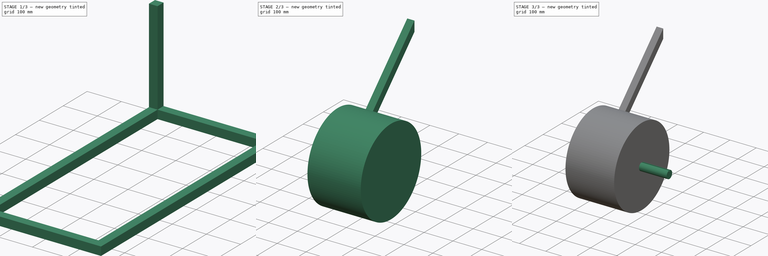
[diagram: build sequence overview — one tinted view per stage of 3, left to right]
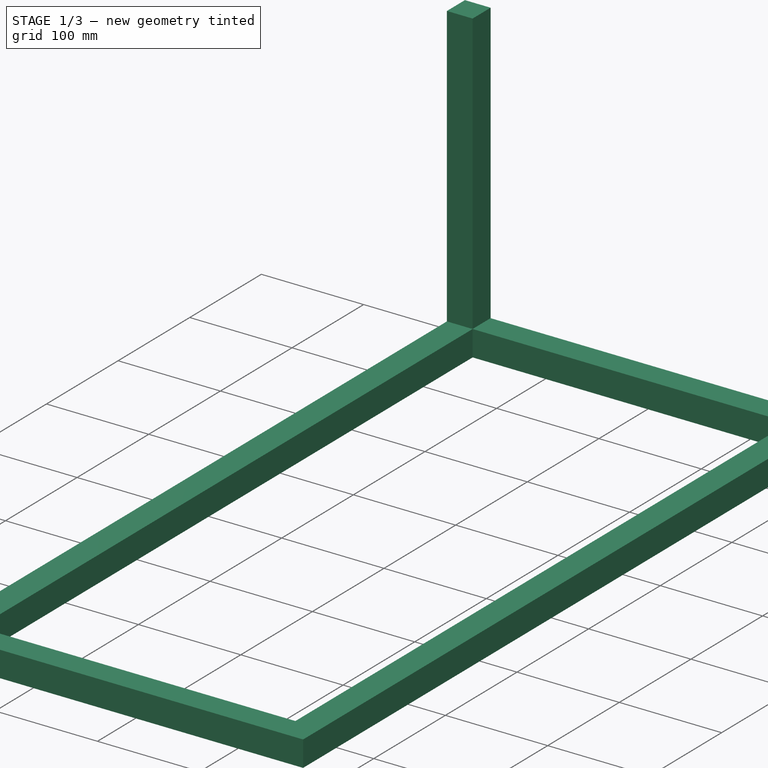
[diagram: stage 1 of 3 — iso view after this stage's code; geometry added in this stage tinted green]
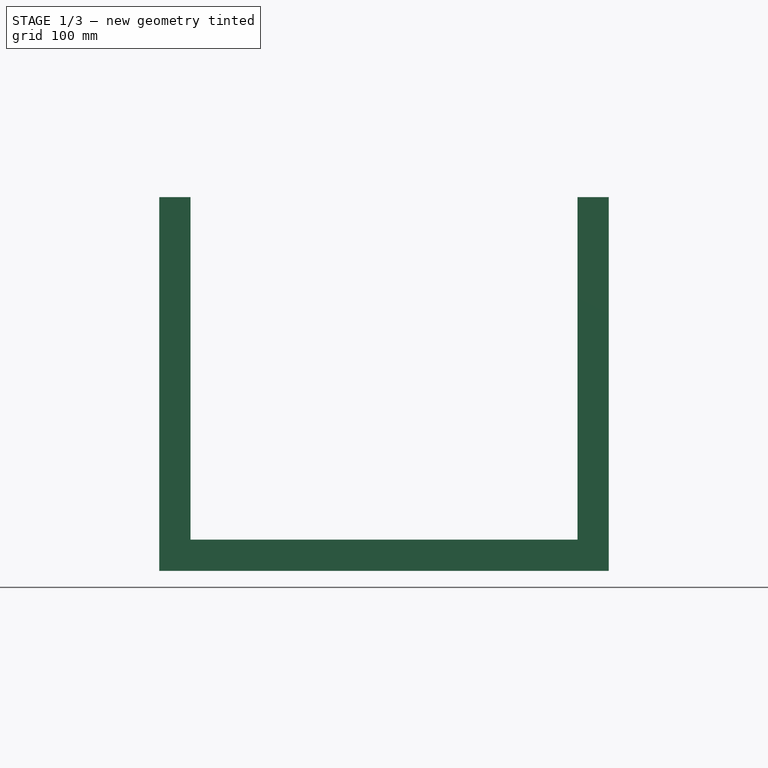
[diagram: stage 1 of 3 — front view after this stage's code; geometry added in this stage tinted green]
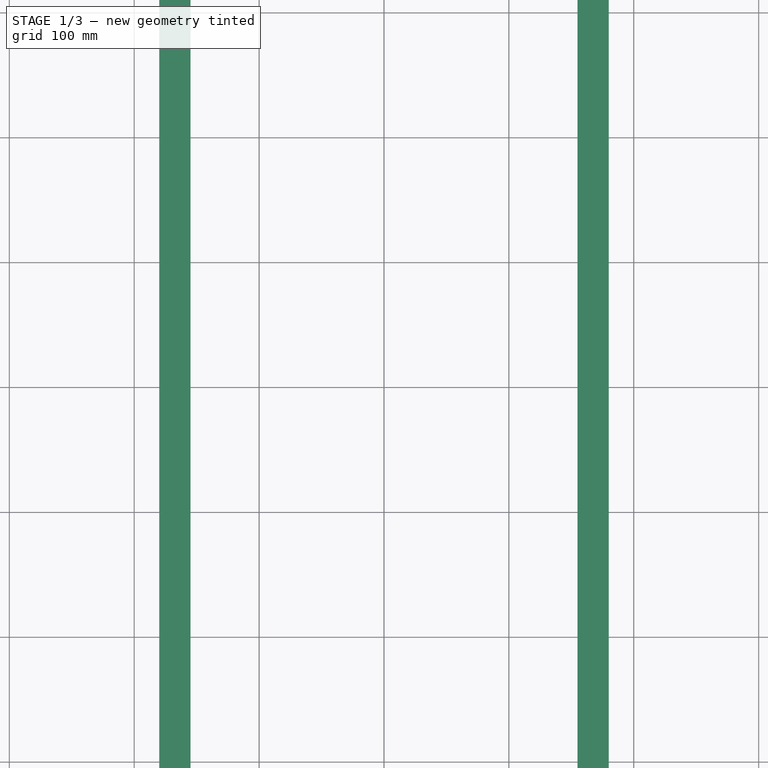
[diagram: stage 1 of 3 — top view after this stage's code; geometry added in this stage tinted green]
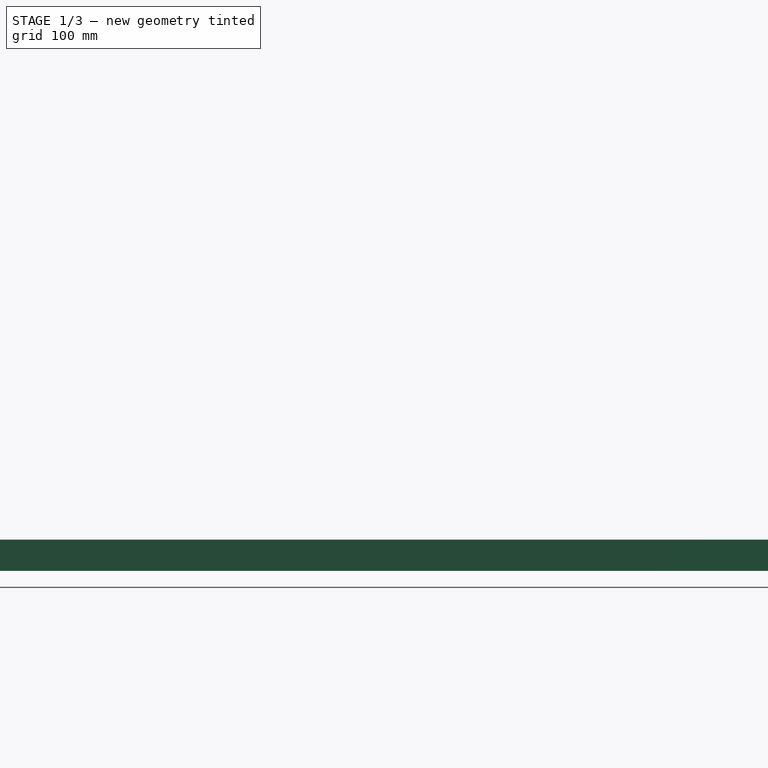
[diagram: stage 1 of 3 — right view after this stage's code; geometry added in this stage tinted green]
FCSTD DOCUMENT  (FreeCAD 0.19R20943 (Git))
Label: Frame
License: All rights reserved
LicenseURL: http://en.wikipedia.org/wiki/All_rights_reserved
objects: Sketcher::SketchObject×7, PartDesign::Pad×7, PartDesign::Body×4
note: 25 computed .brp shape members not serialized (recipe doc carries the construction recipe); baked Part::Feature solids carry a one-line shape summary decoded from their .brp

FEATURE [Sketcher::SketchObject] Sketch  label="chassis"
  MapMode = 5
  Support = -> [XY_Plane]
  sketch-geometry (8):
    g0: LineSegment StartX=-180 StartY=370 StartZ=0 EndX=180 EndY=370 EndZ=0
    g1: LineSegment StartX=180 StartY=370 StartZ=0 EndX=180 EndY=-370 EndZ=0
    g2: LineSegment StartX=180 StartY=-370 StartZ=0 EndX=-180 EndY=-370 EndZ=0
    g3: LineSegment StartX=-180 StartY=-370 StartZ=0 EndX=-180 EndY=370 EndZ=0
    g4: LineSegment StartX=-154.9 StartY=344.9 StartZ=0 EndX=154.9 EndY=344.9 EndZ=0
    g5: LineSegment StartX=154.9 StartY=344.9 StartZ=0 EndX=154.9 EndY=-344.9 EndZ=0
    g6: LineSegment StartX=154.9 StartY=-344.9 StartZ=0 EndX=-154.9 EndY=-344.9 EndZ=0
    g7: LineSegment StartX=-154.9 StartY=-344.9 StartZ=0 EndX=-154.9 EndY=344.9 EndZ=0
  constraints (20):
    c: Coincident(g0,g1)
    c: Coincident(g1,g2)
    c: Coincident(g2,g3)
    c: Coincident(g3,g0)
    c: Horizontal(g2)
    c: Vertical(g1)
    c: Symmetric(g0,g0,g-2)
    c: Symmetric(g0,g2,g-1)
    c: DistanceX(g0,g0) = 360
    c: DistanceY(g3,g3) = 740
    c: Coincident(g4,g5)
    c: Coincident(g5,g6)
    c: Coincident(g6,g7)
    c: Coincident(g7,g4)
    c: Horizontal(g6)
    c: Vertical(g5)
    c: DistanceY(g4,g0) = 25.1
    c: Symmetric(g4,g4,g-2)
    c: Symmetric(g4,g6,g-1)
    c: DistanceX(g4,g0) = 25.1
FEATURE [PartDesign::Pad] Pad  label="Chassis"
  Length = 25.1
  Length2 = 100
  Profile = -> Sketch
  Type = 0
FEATURE [PartDesign::Body] Body  label="Frame"
  Group = -> [Sketch,Pad]
  Origin = -> Origin
  Tip = -> Pad
FEATURE [Sketcher::SketchObject] Sketch001
  ExternalGeometry = -> [Pad]
  MapMode = 5
  Placement = pos=(0,0,25.1) rot=(0,0,1;0rad)
  Support = -> [Pad]
  sketch-geometry (8):
    g0: LineSegment StartX=-180 StartY=370 StartZ=0 EndX=-154.9 EndY=370 EndZ=0
    g1: LineSegment StartX=-154.9 StartY=370 StartZ=0 EndX=-154.9 EndY=344.9 EndZ=0
    g2: LineSegment StartX=-154.9 StartY=344.9 StartZ=0 EndX=-180 EndY=344.9 EndZ=0
    g3: LineSegment StartX=-180 StartY=344.9 StartZ=0 EndX=-180 EndY=370 EndZ=0
    g4: LineSegment StartX=154.9 StartY=344.9 StartZ=0 EndX=180 EndY=344.9 EndZ=0
    g5: LineSegment StartX=180 StartY=344.9 StartZ=0 EndX=180 EndY=370 EndZ=0
    g6: LineSegment StartX=180 StartY=370 StartZ=0 EndX=154.9 EndY=370 EndZ=0
    g7: LineSegment StartX=154.9 StartY=370 StartZ=0 EndX=154.9 EndY=344.9 EndZ=0
  constraints (20):
    c: Coincident(g0,g1)
    c: Coincident(g1,g2)
    c: Coincident(g2,g3)
    c: Coincident(g3,g0)
    c: Horizontal(g0)
    c: Horizontal(g2)
    c: Vertical(g1)
    c: Vertical(g3)
    c: Coincident(g0,g-3)
    c: Coincident(g1,g-4)
    c: Coincident(g4,g5)
    c: Coincident(g5,g6)
    c: Coincident(g6,g7)
    c: Coincident(g7,g4)
    c: Horizontal(g4)
    c: Horizontal(g6)
    c: Vertical(g5)
    c: Vertical(g7)
    c: Coincident(g4,g-6)
    c: Coincident(g5,g-5)
FEATURE [PartDesign::Pad] Pad001
  BaseFeature = -> Pad
  Length = 274.25
  Length2 = 100
  Profile = -> Sketch001
  Type = 0
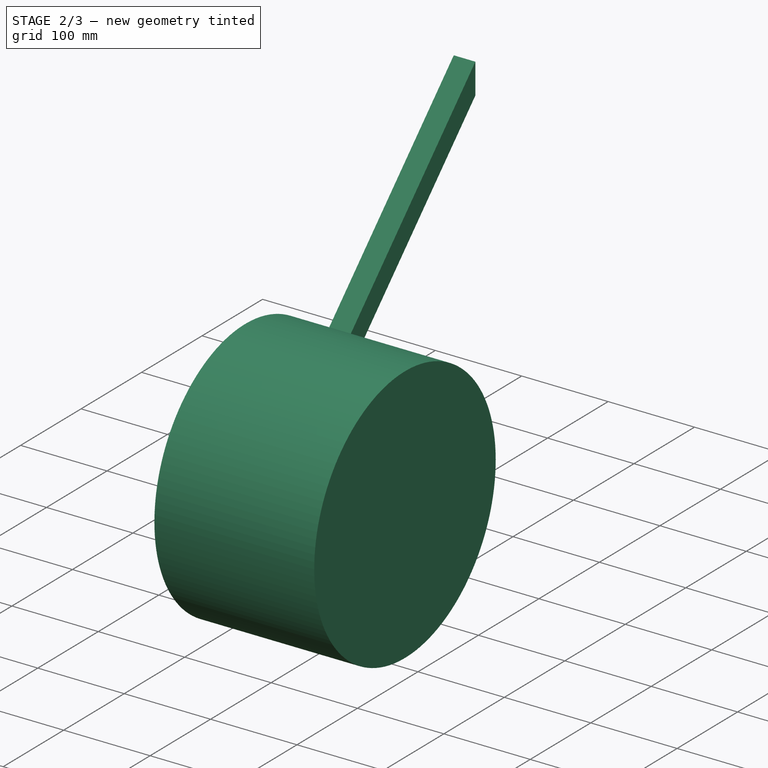
[diagram: stage 2 of 3 — iso view after this stage's code; geometry added in this stage tinted green]
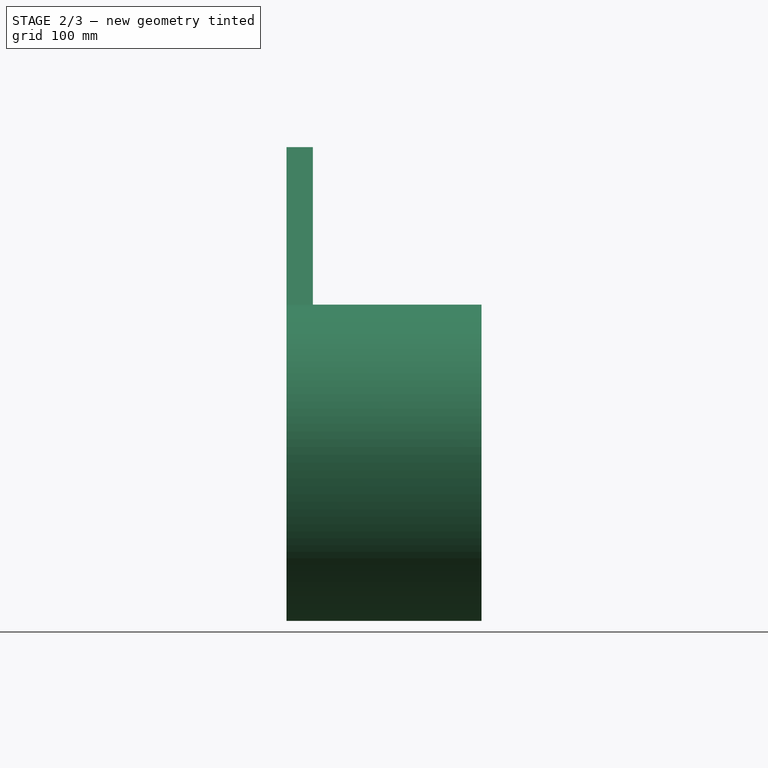
[diagram: stage 2 of 3 — front view after this stage's code; geometry added in this stage tinted green]
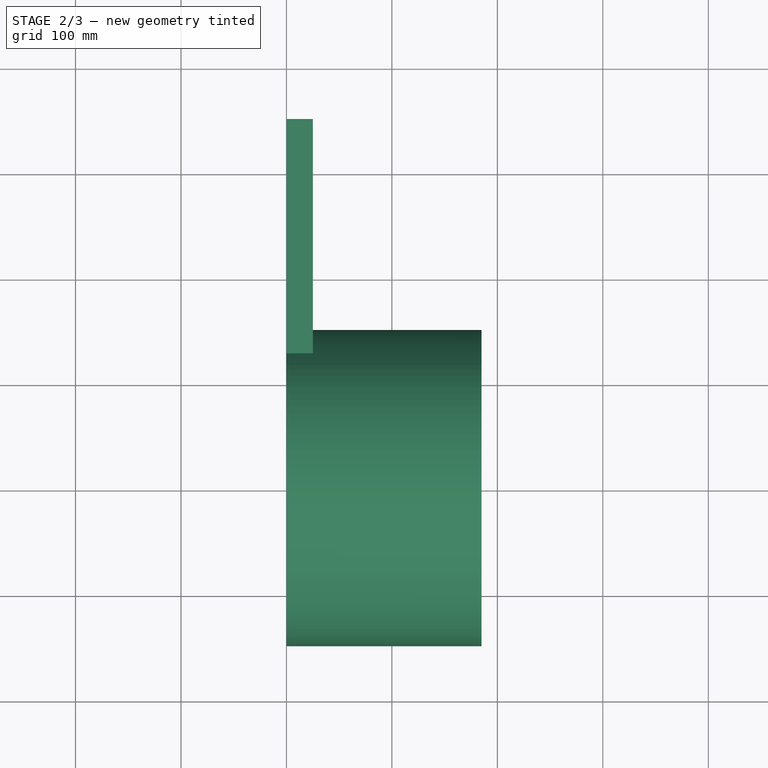
[diagram: stage 2 of 3 — top view after this stage's code; geometry added in this stage tinted green]
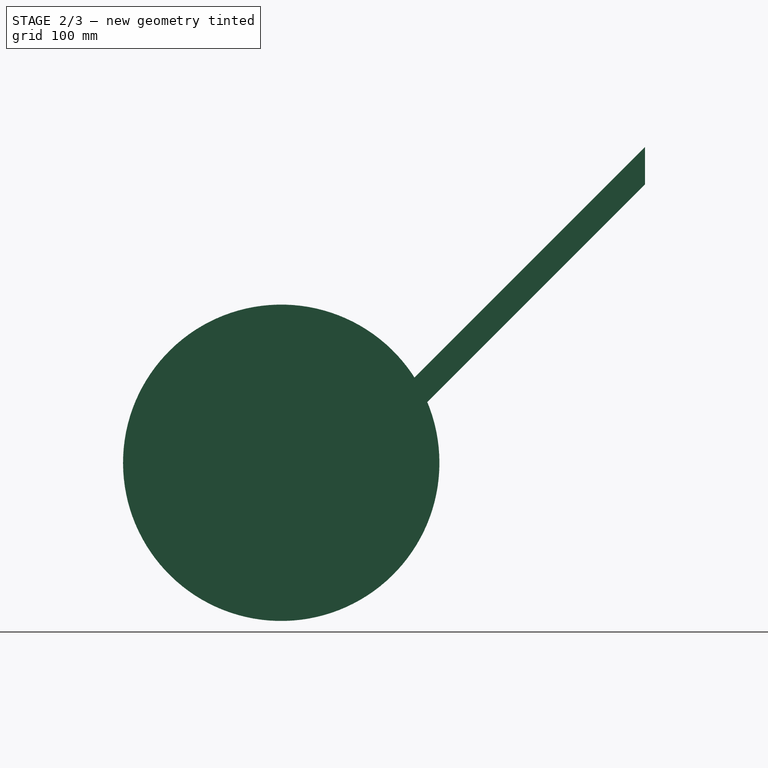
[diagram: stage 2 of 3 — right view after this stage's code; geometry added in this stage tinted green]
FEATURE [Sketcher::SketchObject] Sketch002  label="spool"
  MapMode = 5
  Placement = pos=(0,0,0) rot=(0.57735,0.57735,0.57735;2.0944rad)
  Support = -> [YZ_Plane001]
  sketch-geometry (1):
    g0: Circle CenterX=0 CenterY=0 CenterZ=0 NormalX=0 NormalY=0 NormalZ=1 AngleXU=0 Radius=150
  constraints (2):
    c: Coincident(g0,g-1)
    c: Diameter(g0) = 300
FEATURE [PartDesign::Pad] Pad002  label="Spool"
  Length = 185
  Length2 = 100
  Placement = pos=(0,0,0) rot=(0.57735,0.57735,0.57735;2.0944rad)
  Profile = -> Sketch002
  Type = 0
FEATURE [PartDesign::Body] Body001  label="Bobine"
  Group = -> [Sketch002,Pad002,Sketch003,Pad003,Sketch004,Pad004]
  Origin = -> Origin001
  Placement = pos=(-110,174,189) rot=(0,0,1;0rad)
  Tip = -> Pad004
FEATURE [Sketcher::SketchObject] Sketch005
  MapMode = 5
  Placement = pos=(0,0,0) rot=(0.57735,0.57735,0.57735;2.0944rad)
  Support = -> [YZ_Plane002]
  sketch-geometry (10):
    g0: Circle CenterX=0 CenterY=42.9 CenterZ=0 NormalX=0 NormalY=0 NormalZ=1 AngleXU=0 Radius=15
    g1: LineSegment StartX=-82.5 StartY=0 StartZ=0 EndX=82.5 EndY=0 EndZ=0
    g2: LineSegment StartX=82.5 StartY=0 StartZ=0 EndX=82.5 EndY=17 EndZ=0
    g3: LineSegment StartX=82.5 StartY=17 StartZ=0 EndX=41.1 EndY=17 EndZ=0
    g4: LineSegment StartX=-82.5 StartY=0 StartZ=0 EndX=-82.5 EndY=17 EndZ=0
    g5: LineSegment StartX=-82.5 StartY=17 StartZ=0 EndX=-41.1 EndY=17 EndZ=0
    g6: ArcOfCircle CenterX=0 CenterY=42.9 CenterZ=0 NormalX=0 NormalY=0 NormalZ=1 AngleXU=0 Radius=41.1 StartAngle=0 EndAngle=3.14159
    g7: LineSegment StartX=-41.1 StartY=42.9 StartZ=0 EndX=-41.1 EndY=17 EndZ=0
    g8: LineSegment StartX=41.1 StartY=42.9 StartZ=0 EndX=41.1 EndY=17 EndZ=0
    g9: GeomPoint X=0 Y=84 Z=0
  constraints (27):
    c: Diameter(g0) = 30
    c: Vertical(g0,g-1)
    c: DistanceY(g-1,g0) = 42.9
    c: PointOnObject(g1,g-1)
    c: Symmetric(g1,g1,g-2)
    c: DistanceX(g1,g1) = 165
    c: Coincident(g2,g1)
    c: Vertical(g2)
    c: Coincident(g3,g2)
    c: Horizontal(g3)
    c: DistanceY(g2,g2) = 17
    c: Coincident(g4,g1)
    c: Coincident(g5,g4)
    c: Horizontal(g5)
    c: Symmetric(g4,g2,g-2)
    c: Coincident(g6,g0)
    c: Horizontal(g6,g0)
    c: Horizontal(g0,g6)
    c: Coincident(g7,g6)
    c: Coincident(g7,g5)
    c: Coincident(g8,g6)
    c: Coincident(g8,g3)
    c: Vertical(g7)
    c: Vertical(g8)
    c: PointOnObject(g9,g6)
    c: Vertical(g9,g0)
    c: DistanceY(g1,g9) = 84
FEATURE [PartDesign::Pad] Pad005
  Length = 48
  Length2 = 100
  Placement = pos=(0,0,0) rot=(0.57735,0.57735,0.57735;2.0944rad)
  Profile = -> Sketch005
  Type = 0
FEATURE [PartDesign::Body] Body002  label="UPC-206-20"
  Group = -> [Sketch005,Pad005]
  Origin = -> Origin002
  Placement = pos=(132,204.3,158.75) rot=(1,0,0;0.785398rad)
  Tip = -> Pad005
FEATURE [Sketcher::SketchObject] Sketch007
  ExternalGeometry = -> [Pad001]
  MapMode = 5
  Placement = pos=(0,0,0) rot=(0.57735,0.57735,0.57735;2.0944rad)
  Support = -> [YZ_Plane003]
  sketch-geometry (4):
    g0: LineSegment StartX=344.9 StartY=299.35 StartZ=0 EndX=70.65 EndY=25.1 EndZ=0
    g1: LineSegment StartX=70.65 StartY=25.1 StartZ=0 EndX=106.005 EndY=25.1 EndZ=0
    g2: LineSegment StartX=106.005 StartY=25.1 StartZ=0 EndX=344.9 EndY=263.995 EndZ=0
    g3: LineSegment StartX=344.9 StartY=263.995 StartZ=0 EndX=344.9 EndY=299.35 EndZ=0
  constraints (11):
    c: Coincident(g0,g-4)
    c: Angle(g0,g-4) = 0.785398
    c: PointOnObject(g0,g-5)
    c: Coincident(g1,g0)
    c: Coincident(g2,g1)
    c: Coincident(g3,g2)
    c: Coincident(g3,g0)
    c: Horizontal(g1)
    c: Vertical(g3)
    c: Parallel(g0,g2)
    c: DistanceX(g1,g1) = 35.3553
FEATURE [PartDesign::Pad] Pad006
  Length = 25
  Length2 = 100
  Placement = pos=(0,0,0) rot=(0.57735,0.57735,0.57735;2.0944rad)
  Profile = -> Sketch007
  Type = 0
FEATURE [PartDesign::Body] Body003  label="Support-Bobine"
  Group = -> [Sketch007,Pad006]
  Origin = -> Origin003
  Placement = pos=(155,0,0) rot=(0,0,1;0rad)
  Tip = -> Pad006
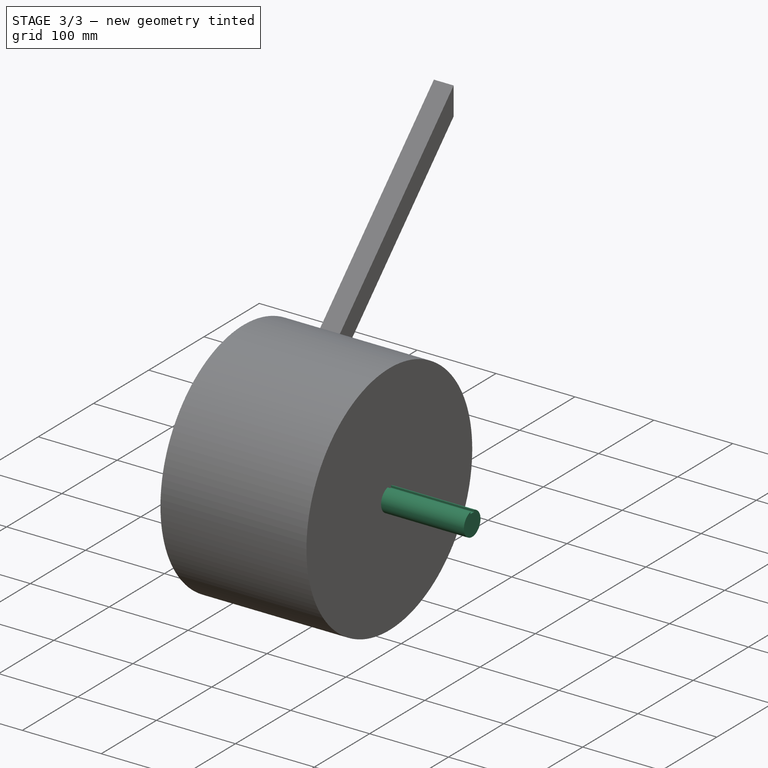
[diagram: stage 3 of 3 — iso view after this stage's code; geometry added in this stage tinted green]
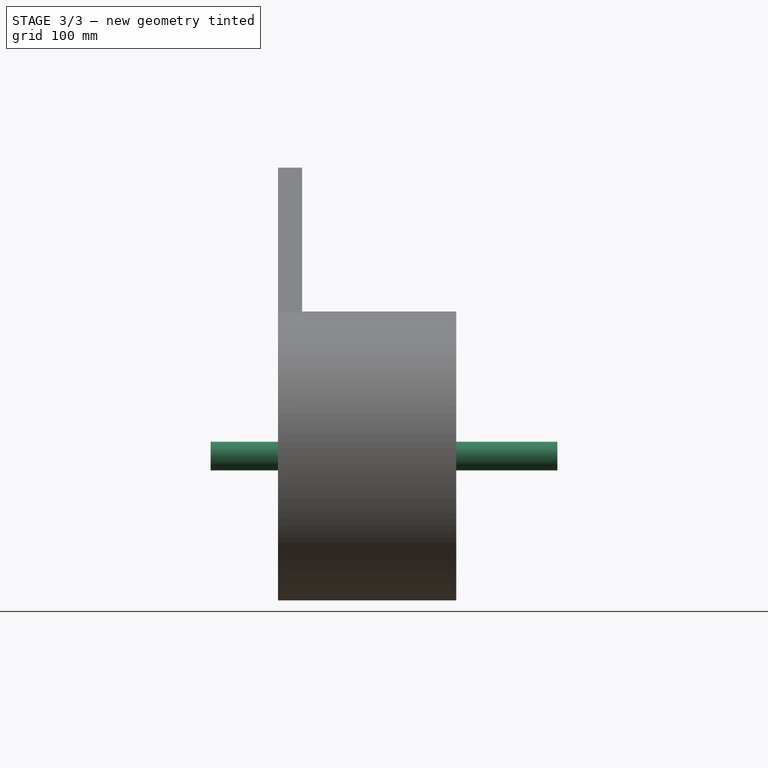
[diagram: stage 3 of 3 — front view after this stage's code; geometry added in this stage tinted green]
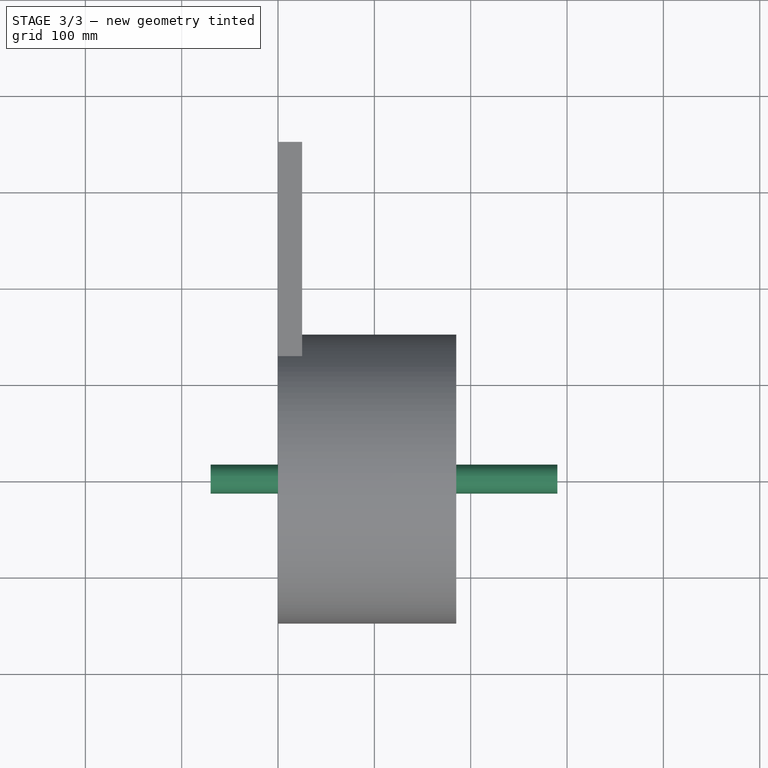
[diagram: stage 3 of 3 — top view after this stage's code; geometry added in this stage tinted green]
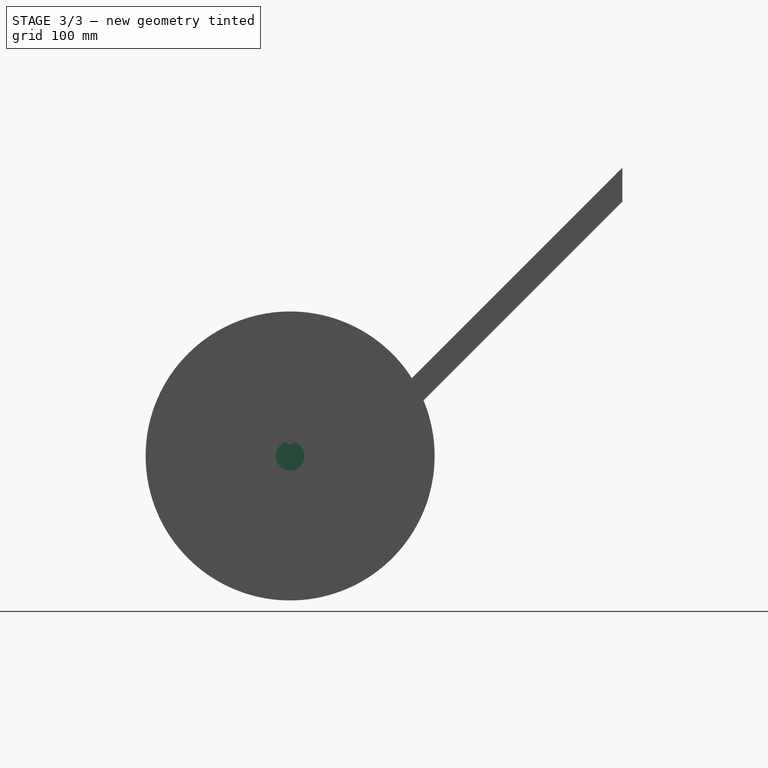
[diagram: stage 3 of 3 — right view after this stage's code; geometry added in this stage tinted green]
FEATURE [Sketcher::SketchObject] Sketch003
  MapMode = 5
  Placement = pos=(185,-8.22e-14,6.16e-14) rot=(0.57735,0.57735,0.57735;2.0944rad)
  Support = -> [Pad002]
  sketch-geometry (4):
    g0: LineSegment StartX=-3 StartY=14.6969 StartZ=0 EndX=-3 EndY=12.1969 EndZ=0
    g1: LineSegment StartX=-3 StartY=12.1969 StartZ=0 EndX=3 EndY=12.1969 EndZ=0
    g2: LineSegment StartX=3 StartY=12.1969 StartZ=0 EndX=3 EndY=14.6969 EndZ=0
    g3: ArcOfCircle CenterX=0 CenterY=0 CenterZ=0 NormalX=0 NormalY=0 NormalZ=1 AngleXU=0 Radius=15 StartAngle=1.77215 EndAngle=7.65262
  constraints (11):
    c: Vertical(g0)
    c: Coincident(g1,g0)
    c: Coincident(g2,g1)
    c: Vertical(g2)
    c: Symmetric(g1,g0,g-2)
    c: DistanceX(g1,g1) = 6
    c: DistanceY(g0,g0) = 2.5
    c: Coincident(g3,g-1)
    c: Coincident(g3,g2)
    c: Coincident(g3,g0)
    c: Diameter(g3) = 30
FEATURE [PartDesign::Pad] Pad003
  BaseFeature = -> Pad002
  Length = 105
  Length2 = 100
  Placement = pos=(0,0,0) rot=(0.57735,0.57735,0.57735;2.0944rad)
  Profile = -> Sketch003
  Type = 0
FEATURE [Sketcher::SketchObject] Sketch004
  ExternalGeometry = -> [Pad003]
  MapMode = 5
  Placement = pos=(0,0,0) rot=(-0.57735,-0.57735,0.57735;2.0944rad)
  Support = -> [Pad003]
  sketch-geometry (4):
    g0: LineSegment StartX=-3 StartY=-14.6969 StartZ=0 EndX=-3 EndY=-12.1969 EndZ=0
    g1: LineSegment StartX=-3 StartY=-12.1969 StartZ=0 EndX=3 EndY=-12.1969 EndZ=0
    g2: LineSegment StartX=3 StartY=-12.1969 StartZ=0 EndX=3 EndY=-14.6969 EndZ=0
    g3: ArcOfCircle CenterX=0 CenterY=0 CenterZ=0 NormalX=0 NormalY=0 NormalZ=1 AngleXU=0 Radius=15 StartAngle=4.91375 EndAngle=10.7942
  constraints (9):
    c: Coincident(g0,g-3)
    c: Coincident(g0,g-4)
    c: Coincident(g1,g0)
    c: Coincident(g1,g-5)
    c: Coincident(g2,g-6)
    c: Coincident(g3,g-1)
    c: Coincident(g2,g1)
    c: Coincident(g0,g3)
    c: Coincident(g2,g3)
FEATURE [PartDesign::Pad] Pad004
  BaseFeature = -> Pad003
  Length = 70
  Length2 = 100
  Placement = pos=(0,0,0) rot=(0.57735,0.57735,0.57735;2.0944rad)
  Profile = -> Sketch004
  Type = 0
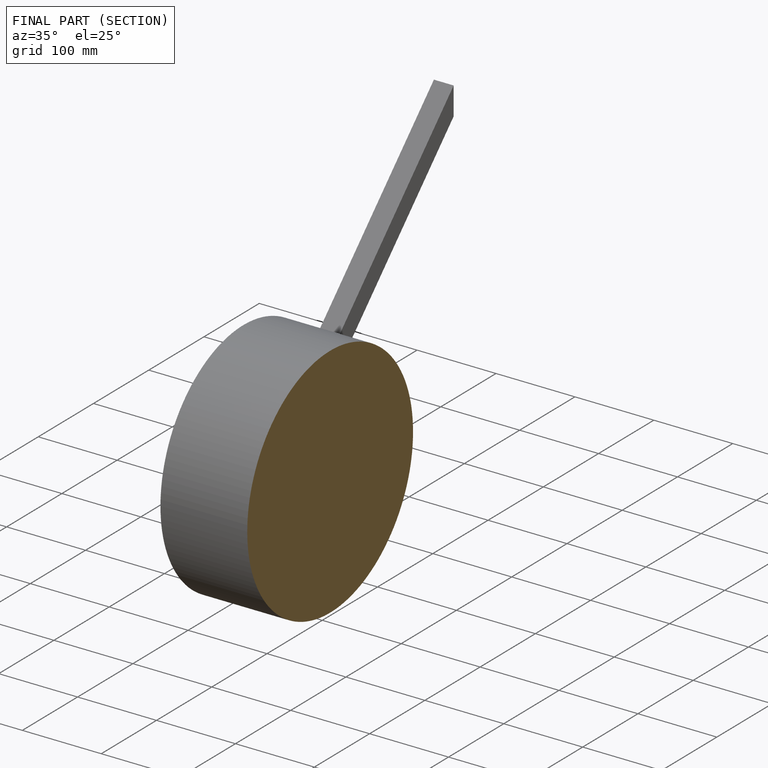
[diagram: finished part — half-section view (interior)]
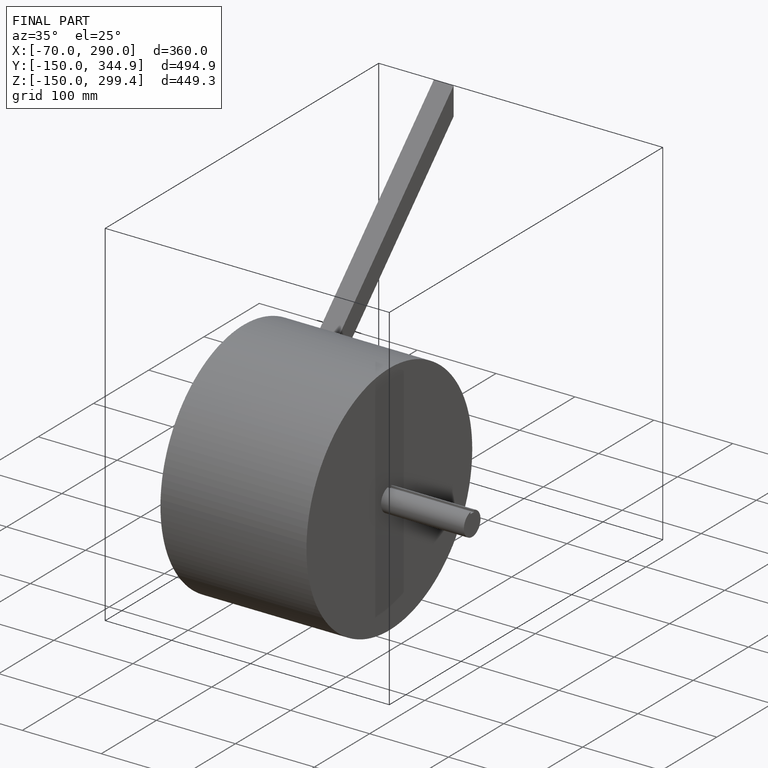
[diagram: finished part — iso view with bounding-box wireframe]
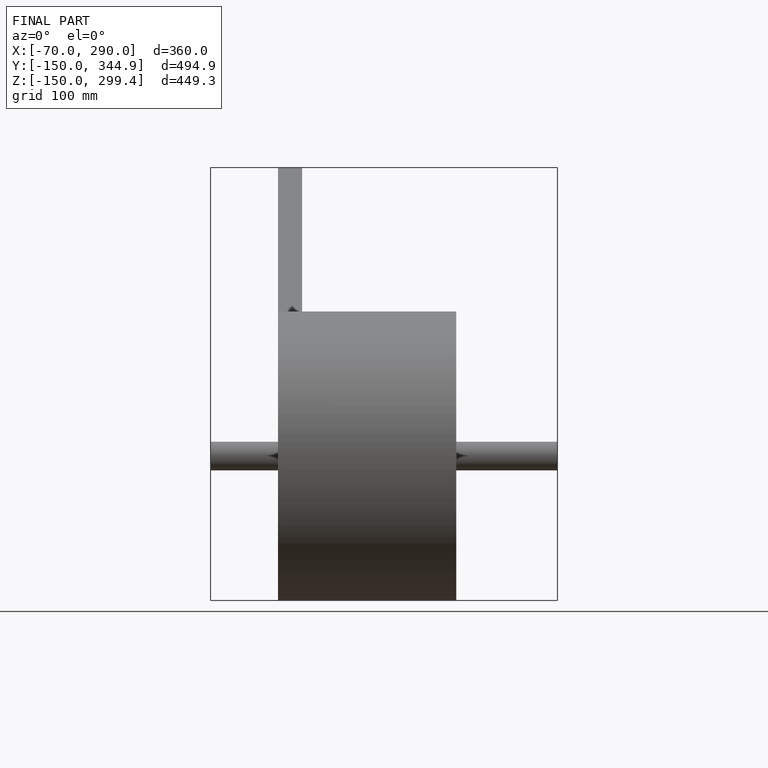
[diagram: finished part — front view with bounding-box wireframe]
